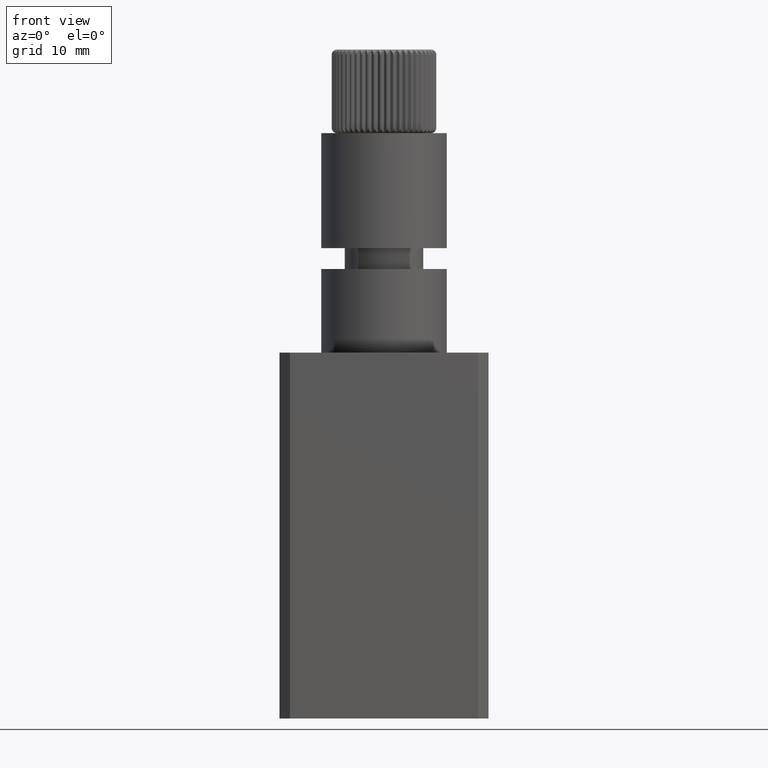
[diagram: clean part render]
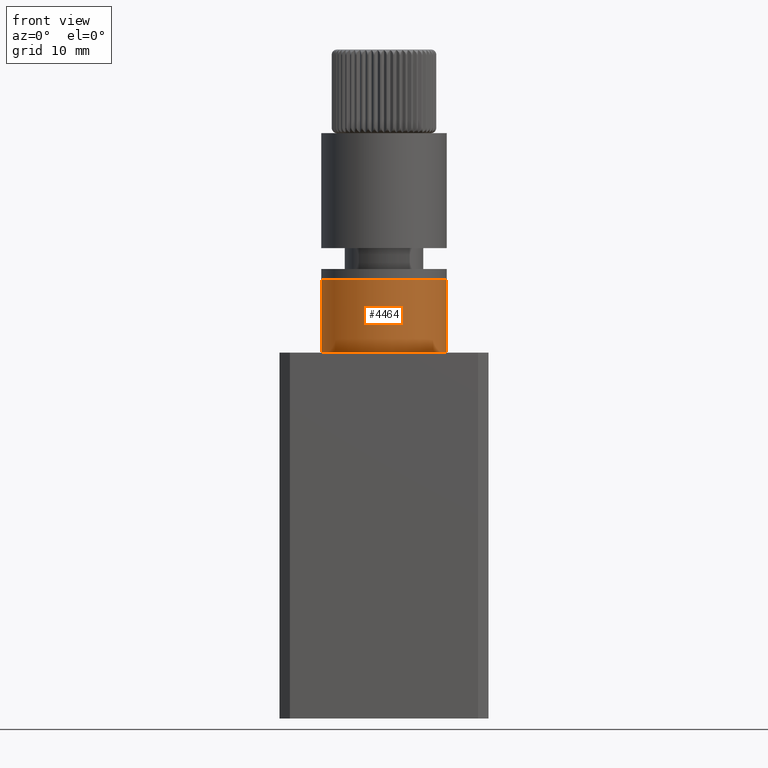
[diagram: same view with one face highlighted and labeled with its STEP entity id]
A machine part, front view. The second image highlights one B-rep face of the part: STEP entity #4464.
In plain terms, the highlighted cylindrical surface (partial cylindrical patch) has radius 6 mm, axis along (-0, -0, -1).
Its self-contained STEP definition (entity closure, byte-faithful):
#112 = EDGE_CURVE ( 'NONE', #3831, #2887, #9174, .T. ) ;
#1052 = CARTESIAN_POINT ( 'NONE',  ( 6.000000000000000900, 7.347880794884120700E-016, 35.00000000000000000 ) ) ;
#1532 = EDGE_CURVE ( 'NONE', #3831, #5109, #5458, .T. ) ;
#1574 = DIRECTION ( 'NONE',  ( 1.000000000000000000, 0.0000000000000000000, 0.0000000000000000000 ) ) ;
#1698 = VECTOR ( 'NONE', #2454, 1000.000000000000000 ) ;
#1748 = VERTEX_POINT ( 'NONE', #1052 ) ;
#1780 = CARTESIAN_POINT ( 'NONE',  ( -6.000000000000000900, 0.0000000000000000000, 42.00000000000000000 ) ) ;
#2454 = DIRECTION ( 'NONE',  ( -0.0000000000000000000, -0.0000000000000000000, -1.000000000000000000 ) ) ;
#2887 = VERTEX_POINT ( 'NONE', #7302 ) ;
#3062 = ORIENTED_EDGE ( 'NONE', *, *, #112, .T. ) ;
#3655 = AXIS2_PLACEMENT_3D ( 'NONE', #8152, #9850, #10714 ) ;
#3701 = DIRECTION ( 'NONE',  ( -1.000000000000000000, 0.0000000000000000000, 0.0000000000000000000 ) ) ;
#3761 = VECTOR ( 'NONE', #6860, 1000.000000000000000 ) ;
#3802 = AXIS2_PLACEMENT_3D ( 'NONE', #6880, #7162, #3701 ) ;
#3831 = VERTEX_POINT ( 'NONE', #1780 ) ;
#3837 = CARTESIAN_POINT ( 'NONE',  ( 6.000000000000000900, 7.347880794884120700E-016, 42.00000000000000000 ) ) ;
#3988 = CIRCLE ( 'NONE', #3655, 6.000000000000000900 ) ;
#4118 = EDGE_CURVE ( 'NONE', #2887, #1748, #3988, .T. ) ;
#4386 = CARTESIAN_POINT ( 'NONE',  ( -6.000000000000000900, 0.0000000000000000000, 42.00000000000000000 ) ) ;
#4464 = ADVANCED_FACE ( 'NONE', ( #5956 ), #6231, .T. ) ;
#5109 = VERTEX_POINT ( 'NONE', #3837 ) ;
#5458 = CIRCLE ( 'NONE', #7380, 6.000000000000000900 ) ;
#5565 = EDGE_LOOP ( 'NONE', ( #5665, #6426, #3062, #10264 ) ) ;
#5665 = ORIENTED_EDGE ( 'NONE', *, *, #10863, .F. ) ;
#5956 = FACE_OUTER_BOUND ( 'NONE', #5565, .T. ) ;
#6231 = CYLINDRICAL_SURFACE ( 'NONE', #3802, 6.000000000000000900 ) ;
#6426 = ORIENTED_EDGE ( 'NONE', *, *, #1532, .F. ) ;
#6860 = DIRECTION ( 'NONE',  ( -0.0000000000000000000, -0.0000000000000000000, -1.000000000000000000 ) ) ;
#6880 = CARTESIAN_POINT ( 'NONE',  ( 0.0000000000000000000, 0.0000000000000000000, 42.00000000000000000 ) ) ;
#7162 = DIRECTION ( 'NONE',  ( -0.0000000000000000000, -0.0000000000000000000, -1.000000000000000000 ) ) ;
#7302 = CARTESIAN_POINT ( 'NONE',  ( -6.000000000000000900, 0.0000000000000000000, 35.00000000000000000 ) ) ;
#7380 = AXIS2_PLACEMENT_3D ( 'NONE', #9025, #10015, #1574 ) ;
#7471 = CARTESIAN_POINT ( 'NONE',  ( 6.000000000000000900, 7.347880794884120700E-016, 42.00000000000000000 ) ) ;
#7996 = LINE ( 'NONE', #7471, #1698 ) ;
#8152 = CARTESIAN_POINT ( 'NONE',  ( 0.0000000000000000000, 0.0000000000000000000, 35.00000000000000000 ) ) ;
#9025 = CARTESIAN_POINT ( 'NONE',  ( 0.0000000000000000000, 0.0000000000000000000, 42.00000000000000000 ) ) ;
#9174 = LINE ( 'NONE', #4386, #3761 ) ;
#9850 = DIRECTION ( 'NONE',  ( -0.0000000000000000000, -0.0000000000000000000, 1.000000000000000000 ) ) ;
#10015 = DIRECTION ( 'NONE',  ( 0.0000000000000000000, 0.0000000000000000000, 1.000000000000000000 ) ) ;
#10264 = ORIENTED_EDGE ( 'NONE', *, *, #4118, .T. ) ;
#10714 = DIRECTION ( 'NONE',  ( -1.000000000000000000, 0.0000000000000000000, 0.0000000000000000000 ) ) ;
#10863 = EDGE_CURVE ( 'NONE', #5109, #1748, #7996, .T. ) ;